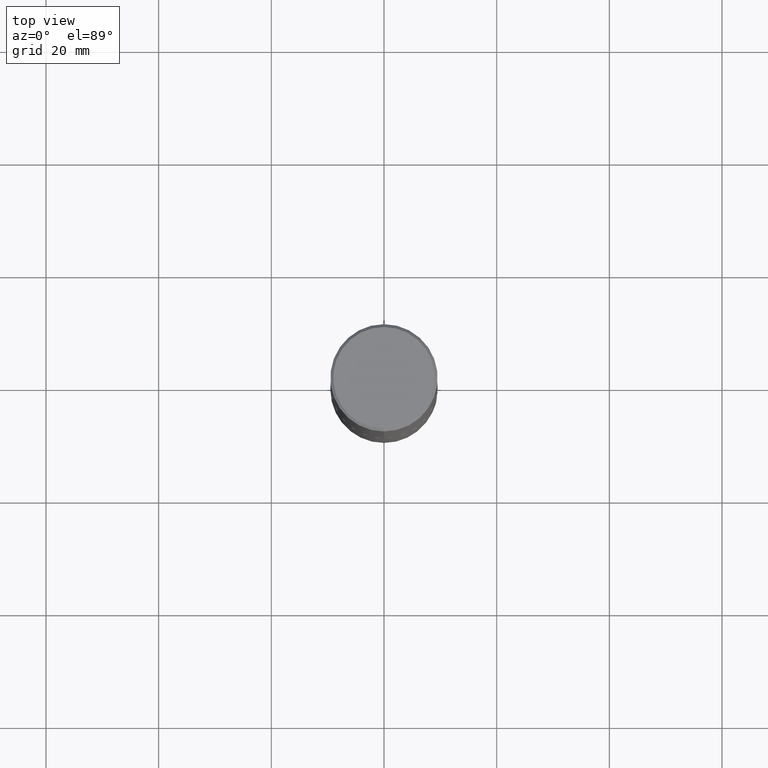
[diagram: clean part render]
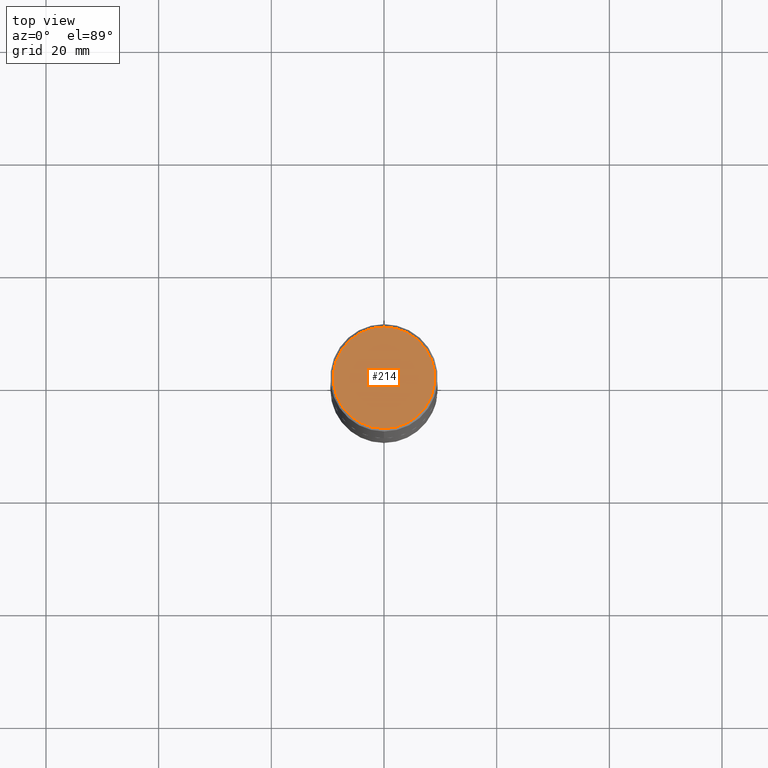
[diagram: same view with one face highlighted and labeled with its STEP entity id]
A machine part, top view. The second image highlights one B-rep face of the part: STEP entity #214.
In plain terms, the highlighted planar face has unit normal (0, -0, -1).
Its self-contained STEP definition (entity closure, byte-faithful):
#1 = DIRECTION ( 'NONE',  ( -2.445545483075457236E-29, 3.491371533172028921E-15, 1.000000000000000000 ) ) ;
#7 = CARTESIAN_POINT ( 'NONE',  ( 3.132605730293573520E-45, -4.472249871077574679E-31, -1.280943557162587146E-16 ) ) ;
#15 = CIRCLE ( 'NONE', #21, 0.3550000000000001488 ) ;
#19 = EDGE_CURVE ( 'NONE', #96, #170, #15, .T. ) ;
#21 = AXIS2_PLACEMENT_3D ( 'NONE', #7, #1, #165 ) ;
#36 = DIRECTION ( 'NONE',  ( -2.445545483075457236E-29, 3.491371533172028921E-15, 1.000000000000000000 ) ) ;
#54 = CARTESIAN_POINT ( 'NONE',  ( 2.478951750578625787E-15, 0.3550000000000001488, -1.303484072134200158E-15 ) ) ;
#96 = VERTEX_POINT ( 'NONE', #146 ) ;
#120 = DIRECTION ( 'NONE',  ( 2.445545483075457236E-29, -3.491371533172028526E-15, -1.000000000000000000 ) ) ;
#130 = ORIENTED_EDGE ( 'NONE', *, *, #304, .T. ) ;
#146 = CARTESIAN_POINT ( 'NONE',  ( -2.504081769186609399E-15, -0.3550000000000001488, 1.111342538559812110E-15 ) ) ;
#164 = DIRECTION ( 'NONE',  ( -6.982962677686266711E-15, -1.000000000000000000, 3.491371533172028526E-15 ) ) ;
#165 = DIRECTION ( 'NONE',  ( -6.982962677686266711E-15, -1.000000000000000000, 3.491371533172028526E-15 ) ) ;
#170 = VERTEX_POINT ( 'NONE', #368 ) ;
#214 = ADVANCED_FACE ( 'NONE', ( #338 ), #407, .F. ) ;
#217 = ORIENTED_EDGE ( 'NONE', *, *, #19, .T. ) ;
#242 = CIRCLE ( 'NONE', #283, 0.3550000000000001488 ) ;
#245 = AXIS2_PLACEMENT_3D ( 'NONE', #54, #120, #333 ) ;
#283 = AXIS2_PLACEMENT_3D ( 'NONE', #318, #36, #164 ) ;
#304 = EDGE_CURVE ( 'NONE', #170, #96, #242, .T. ) ;
#318 = CARTESIAN_POINT ( 'NONE',  ( 3.132605730293573520E-45, -4.472249871077574679E-31, -1.280943557162587146E-16 ) ) ;
#333 = DIRECTION ( 'NONE',  ( 6.982962677686265922E-15, 1.000000000000000000, -3.491371533172028526E-15 ) ) ;
#338 = FACE_OUTER_BOUND ( 'NONE', #346, .T. ) ;
#346 = EDGE_LOOP ( 'NONE', ( #130, #217 ) ) ;
#368 = CARTESIAN_POINT ( 'NONE',  ( 2.548781377355488296E-15, 0.3550000000000001488, -1.367531249992329638E-15 ) ) ;
#407 = PLANE ( 'NONE',  #245 ) ;